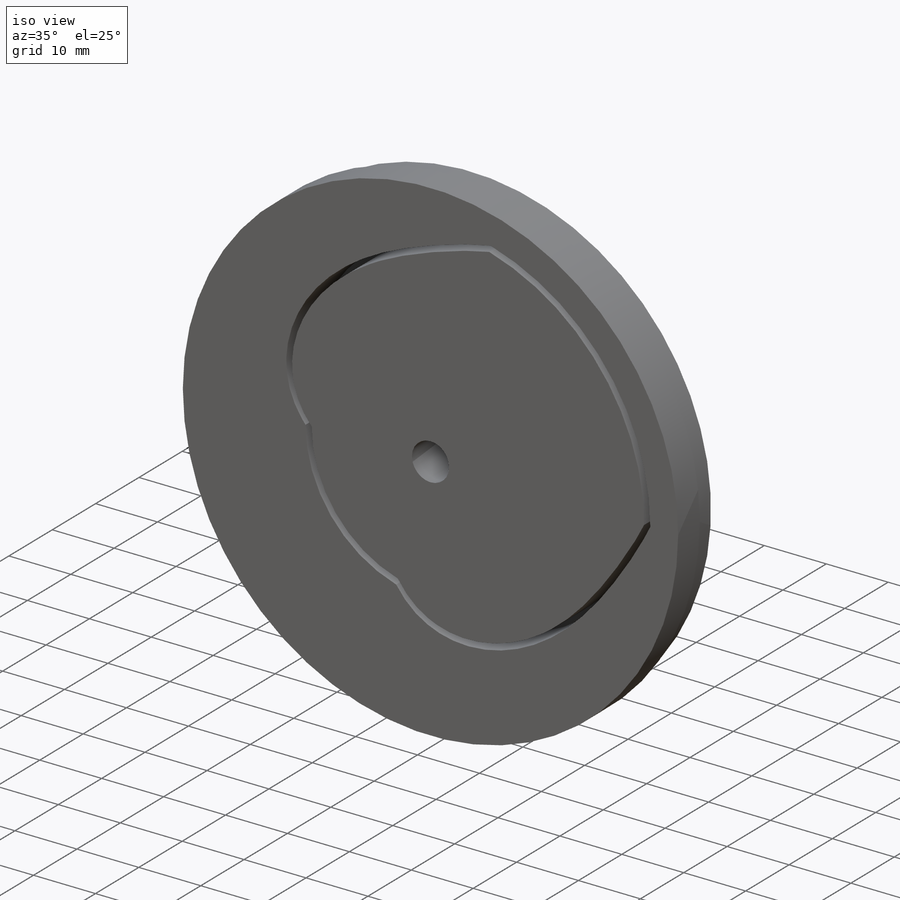
[diagram: iso view]
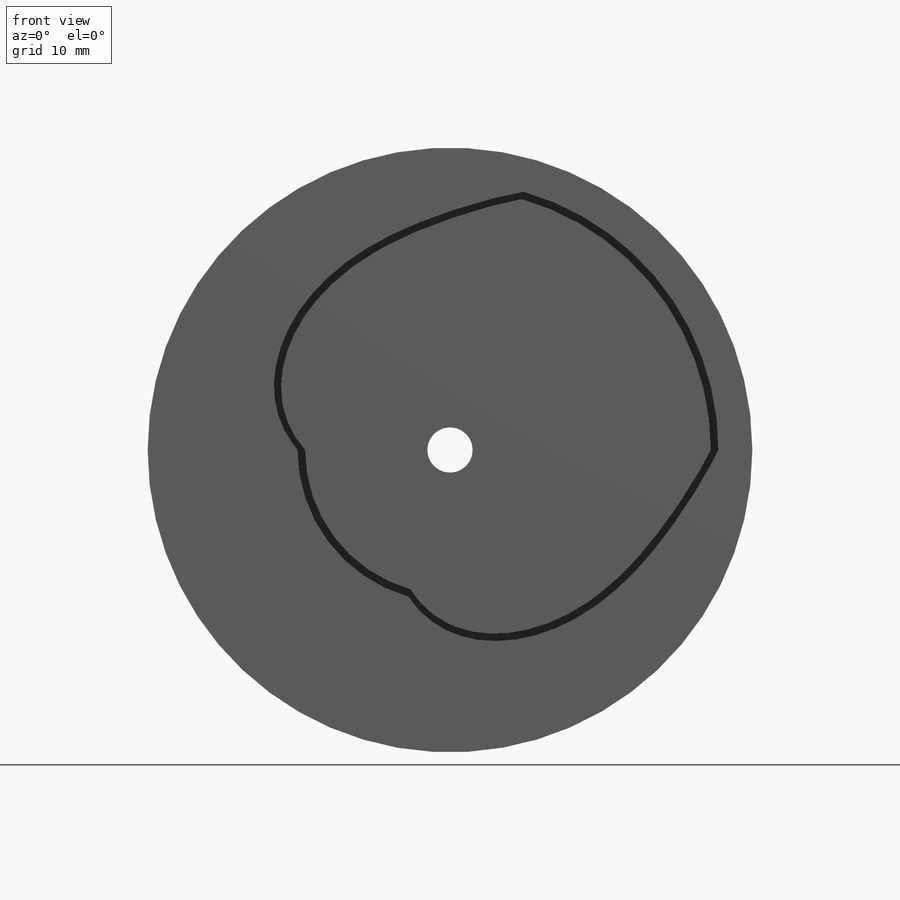
[diagram: front view]
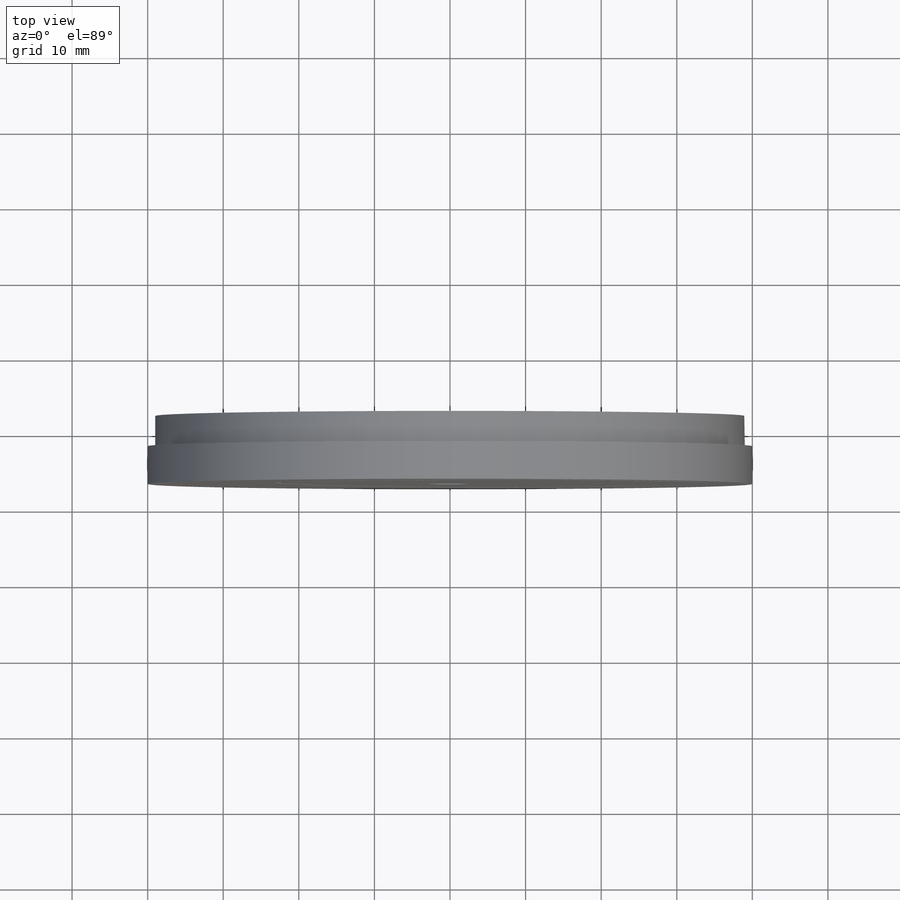
[diagram: top view]
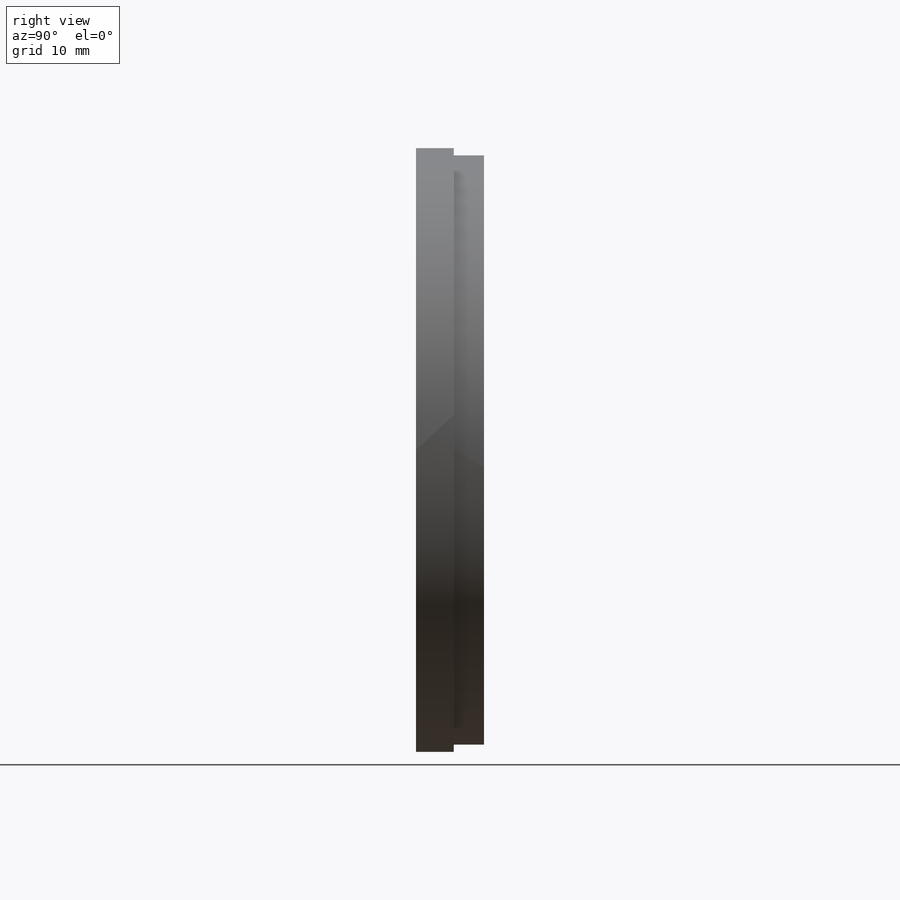
[diagram: right view]
SOLIDWORKS PART (.sldprt)
format: sldprt  version: not decoded by parser v0  size: 502,272 bytes
history: native  units: mm
features: sketch x10, extrude x5, cut_extrude x4, plane x3, material x1 (+9 scaffold rows collapsed)
feature tree (32):
  scaffold x9  (default folders/planes/origin — collapsed)
  material  "材质 <未指定>"
  plane  "前视基准面"
  plane  "上视基准面"
  plane  "右视基准面"
  sketch  "草图1"  dims[D1=~66.486397mm]
  extrude  "凸台-拉伸1"  Depth=2mm
  sketch  "草图2"  dims[D1=~22.004712mm]
  extrude  "凸台-拉伸2"  Depth=5mm
  sketch  "草图3"  dims[D1=~11.012743mm]
  cut_extrude  "切除-拉伸1"  Depth=25mm
  sketch  "草图4"  dims[D1=~40.14671mm]
  extrude  "凸台-拉伸3"  [1 undecoded]
  sketch  "草图5"  dims[D1=~34.463676mm]
  extrude  "凸台-拉伸4"  [1 undecoded]
  sketch  "草图6"  dims[D1=~11.322729mm]
  cut_extrude  "切除-拉伸2"  Depth=10mm
  sketch  "草图7"
  extrude  "凸台-拉伸5"  Depth=2mm
  sketch  "草图9"  dims[c1.D1=~13.376059mm c1.D2=35.0mm c1.D3=~19.68192mm c2.D1=25.0mm c3.D1=74.0581deg c4.D1=25.0mm c5.D1=74.0581deg c5.D2=24.6866mm c6.D2=75.1175deg c7.D2=0.0mm c8.D2=76.1769deg c9.D2=~24.07475mm c10.D2=77.2363deg c11.D2=~23.77841mm c12.D2=78.2957deg c13.D2=~23.48957mm c14.D2=79.3551deg c15.D2=~23.20885mm c16.D2=80.4145deg c17.D2=22.9367mm c18.D2=81.4739deg c19.D2=~22.67348mm c20.D2=~82.53333deg c21.D2=~22.41937mm c22.D2=83.5927deg c23.D2=~22.17451mm c24.D2=84.6521deg c25.D2=~21.93889mm c26.D2=85.7115deg c27.D2=~21.71248mm c28.D2=86.7759deg c29.D2=~21.49514mm c30.D2=87.8303deg c31.D2=21.2867mm c32.D2=88.8897deg c33.D2=~21.08696mm c34.D2=89.9491deg c35.D2=~20.89565mm c36.D2=91.0085deg c37.D2=20.7125mm c38.D2=92.0679deg c39.D2=~20.53722mm c40.D2=93.1273deg c41.D2=~20.36949mm c42.D2=94.1867deg c43.D2=20.209mm c44.D2=95.2461deg c45.D2=20.209mm c46.D2=95.2461deg c47.D2=~20.05542mm c48.D2=96.3055deg c49.D2=~19.90842mm c50.D2=97.3649deg c51.D2=~19.76769mm c52.D2=98.4243deg c53.D2=~19.63289mm c54.D2=99.4837deg c55.D2=~19.50372mm c56.D2=100.5431deg c57.D2=~19.37986mm c58.D2=101.6025deg c59.D2=19.261mm c60.D2=102.6619deg c61.D2=~19.14687mm c62.D2=103.7213deg c63.D2=~19.03716mm c64.D2=104.7807deg c65.D2=18.9316mm c66.D2=105.8401deg c67.D2=~18.82993mm c68.D2=106.8995deg c69.D2=~18.73189mm c70.D2=107.9589deg c71.D2=~18.67723mm c72.D2=109.0183deg c73.D2=~18.54571mm c74.D2=110.0777deg c75.D2=18.4571mm c76.D2=201.1371deg c77.D2=~18.37117mm c78.D2=112.1965deg c79.D2=~18.28772mm c80.D2=113.2559deg c81.D2=~18.20652mm c82.D2=114.3153deg c83.D2=~18.12739mm c84.D2=115.3747deg c85.D2=~18.05013mm c86.D2=116.4341deg c87.D2=~17.97455mm c88.D2=117.4935deg c89.D2=~17.90046mm c90.D2=118.5529deg c91.D2=~17.82769mm c92.D2=119.6123deg c93.D2=~17.75606mm c94.D2=120.6717deg c95.D2=17.6854mm c96.D2=121.7311deg c97.D2=17.6155mm c98.D2=122.7905deg c99.D2=~17.54635mm c100.D2=123.8499deg c101.D2=~17.47762mm c102.D2=124.9093deg c103.D2=~17.40921mm c104.D2=164.0581deg c105.D2=~17.40921mm c106.D2=125.9687deg c107.D2=~17.34096mm c108.D2=127.0281deg c109.D2=~17.27271mm c110.D2=128.0875deg c111.D2=17.2043mm c112.D2=129.1469deg c113.D2=~17.13557mm c114.D2=130.2063deg c115.D2=~17.06637mm c116.D2=131.2657deg c117.D2=~16.99652mm c118.D2=132.3251deg c119.D2=~16.92586mm c120.D2=133.3845deg c121.D2=~16.85423mm c122.D2=134.4439deg c123.D2=~16.78146mm c124.D2=135.5033deg c125.D2=~16.70737mm c126.D2=136.5627deg c127.D2=~16.63179mm c128.D2=137.6221deg c129.D2=~16.55453mm c130.D2=138.6815deg c131.D2=16.4754mm c132.D2=139.7409deg c133.D2=16.3942mm c134.D2=140.8003deg c135.D2=~16.31075mm c136.D2=141.8597deg c137.D2=~16.22482mm c138.D2=142.9191deg c139.D2=~16.13621mm c140.D2=143.9785deg c141.D2=~16.04469mm c142.D2=145.0379deg c143.D2=~15.95003mm c144.D2=146.0973deg c145.D2=~15.85199mm c146.D2=147.1567deg c147.D2=~15.75032mm c148.D2=148.2161deg c149.D2=~15.64476mm c150.D2=149.2755deg c151.D2=~15.53505mm c152.D2=150.3349deg c153.D2=~15.42092mm c154.D2=151.3943deg c155.D2=~15.30206mm c156.D2=152.4537deg c157.D2=15.1782mm c158.D2=153.5131deg c159.D2=~15.04903mm c160.D2=154.5725deg c161.D2=~14.91423mm c162.D2=155.6319deg c163.D2=14.7735mm c164.D2=156.6913deg c165.D2=14.6265mm c166.D2=157.7507deg c167.D2=~14.47292mm c168.D2=158.8101deg c169.D2=~14.31243mm c170.D2=159.8695deg c171.D2=14.1447mm c172.D2=160.9289deg c173.D2=~13.96942mm c174.D2=161.9883deg c175.D2=~13.78627mm c176.D2=163.0477deg c177.D2=~13.59496mm c178.D2=164.1071deg c179.D2=~13.39522mm c180.D2=165.1665deg c181.D2=~13.18678mm c182.D2=166.2259deg c183.D2=~12.96944mm c184.D2=167.2853deg c185.D2=~12.74303mm c186.D2=168.3447deg c187.D2=~12.50741mm c188.D2=169.4041deg c189.D2=~12.26255mm c190.D2=170.4635deg c191.D2=~12.00844mm c192.D2=171.5229deg c193.D2=~11.74522mm c194.D2=172.5823deg c195.D2=~11.47307mm c196.D2=173.6417deg c197.D2=~11.19235mm c198.D2=174.7011deg c199.D2=~10.90351mm c200.D2=184.2395deg c201.D2=~10.60717mm c202.D2=183.1801deg c203.D2=~10.30412mm c204.D2=182.1207deg c205.D2=~9.995316mm c206.D2=181.0613deg c207.D2=~9.68192mm c208.D2=180.0deg c209.D2=~9.68192mm c210.D2=105.9419deg c211.D2=~37.02905mm c212.D2=~37.02905deg c213.D2=~26.78146mm c213.D4=35.0mm c214.D2=~37.02905mm c215.D2=~37.02905deg c215.D1=~37.02905deg c216.D1=~33.759945mm]
  sketch  "草图10"
  cut_extrude  "切除-拉伸3"  [1 undecoded]
  sketch  "草图11"
  cut_extrude  "切除-拉伸4"  Depth=10mm
decode coverage: 13 of 19 modeling features carry decoded parameters
note: ~ marks probable driven/reference dimensions
note: 3 parameter values undecoded
summary: no parameter record found for 3 features
note: suppression state not decoded; provenance and decode notes live in map.json
